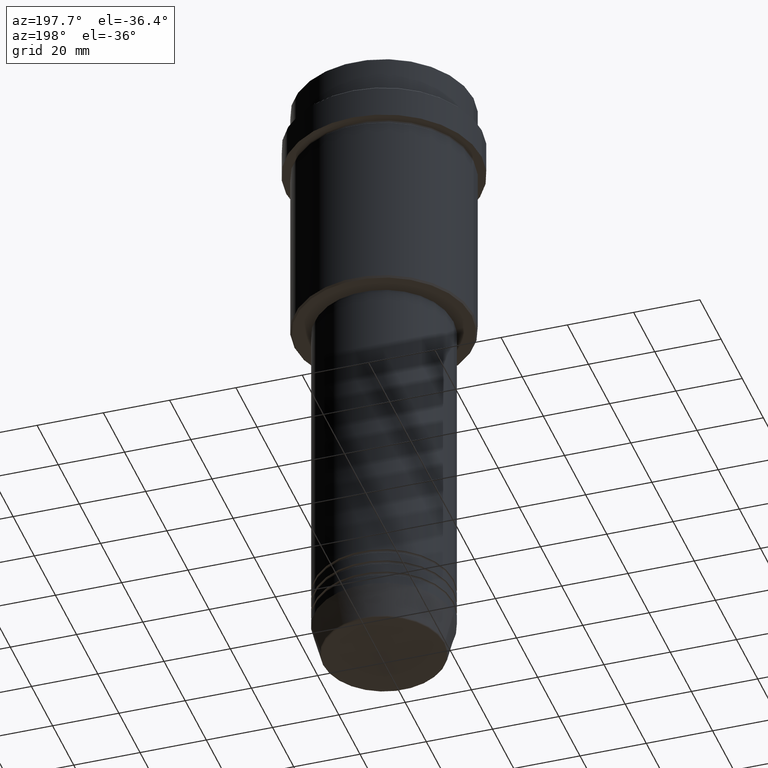
[diagram: clean part render]
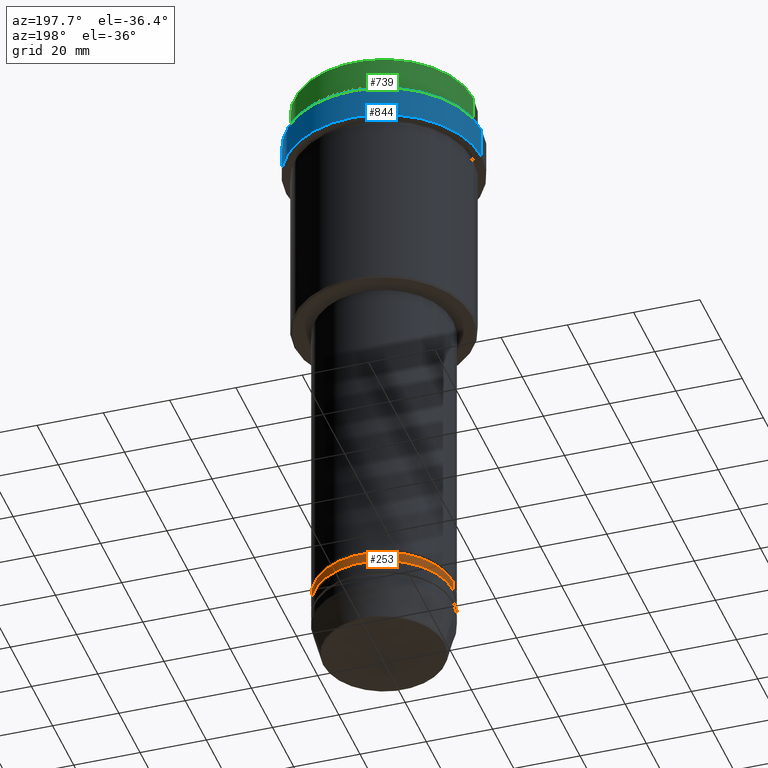
[diagram: same view with three faces highlighted in distinct colors, each labeled with its STEP entity id]
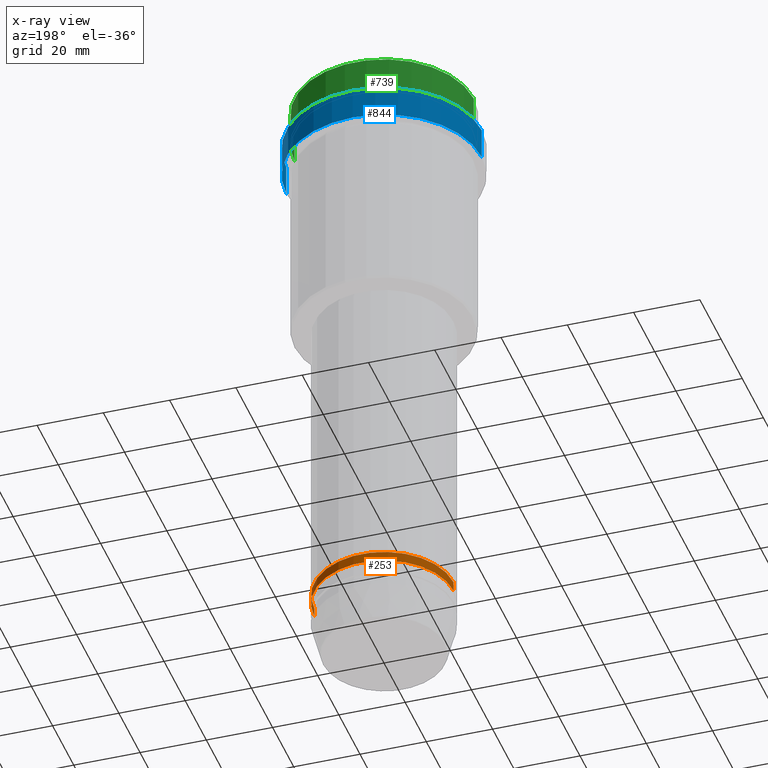
[diagram: x-ray of the same camera — body ghosted, the three highlighted faces saturated]
A machine part, auxiliary view with three faces highlighted in distinct colors.
The next image is the same camera in x-ray (body ghosted, the three faces saturated) — at least one of them is partly hidden behind the body in this view.
Their STEP definitions:

[orange] entity #253 — the highlighted cylindrical surface (partial cylindrical patch) has radius 21 mm, axis along (-0, -0, 1).
#2 = CARTESIAN_POINT ( 'NONE',  ( 0.000000000000000000, 0.000000000000000000, -171.9999999999999147 ) ) ;
#7 = DIRECTION ( 'NONE',  ( -0.000000000000000000, -0.000000000000000000, 1.000000000000000000 ) ) ;
#73 = AXIS2_PLACEMENT_3D ( 'NONE', #2, #1300, #1219 ) ;
#79 = CARTESIAN_POINT ( 'NONE',  ( -21.00000000000000000, 2.571758278209441661E-15, 0.000000000000000000 ) ) ;
#93 = CIRCLE ( 'NONE', #1097, 21.00000000000000000 ) ;
#124 = CARTESIAN_POINT ( 'NONE',  ( 0.000000000000000000, 0.000000000000000000, -174.9999999999999147 ) ) ;
#160 = EDGE_CURVE ( 'NONE', #770, #904, #93, .T. ) ;
#192 = CARTESIAN_POINT ( 'NONE',  ( -21.00000000000000000, 2.571758278209441661E-15, -171.9999999999999147 ) ) ;
#237 = CARTESIAN_POINT ( 'NONE',  ( 21.00000000000000000, 0.000000000000000000, 0.000000000000000000 ) ) ;
#253 = ADVANCED_FACE ( 'NONE', ( #847 ), #868, .T. ) ;
#381 = ORIENTED_EDGE ( 'NONE', *, *, #160, .T. ) ;
#450 = EDGE_CURVE ( 'NONE', #770, #486, #905, .T. ) ;
#486 = VERTEX_POINT ( 'NONE', #924 ) ;
#574 = ORIENTED_EDGE ( 'NONE', *, *, #1011, .T. ) ;
#635 = DIRECTION ( 'NONE',  ( -0.000000000000000000, -0.000000000000000000, 1.000000000000000000 ) ) ;
#756 = DIRECTION ( 'NONE',  ( 1.000000000000000000, 0.000000000000000000, 0.000000000000000000 ) ) ;
#770 = VERTEX_POINT ( 'NONE', #1208 ) ;
#847 = FACE_OUTER_BOUND ( 'NONE', #1083, .T. ) ;
#868 = CYLINDRICAL_SURFACE ( 'NONE', #1163, 21.00000000000000000 ) ;
#897 = DIRECTION ( 'NONE',  ( -0.000000000000000000, -0.000000000000000000, 1.000000000000000000 ) ) ;
#904 = VERTEX_POINT ( 'NONE', #1026 ) ;
#905 = LINE ( 'NONE', #237, #949 ) ;
#924 = CARTESIAN_POINT ( 'NONE',  ( 21.00000000000000000, 0.000000000000000000, -171.9999999999999147 ) ) ;
#949 = VECTOR ( 'NONE', #897, 1000.000000000000000 ) ;
#995 = ORIENTED_EDGE ( 'NONE', *, *, #1173, .F. ) ;
#1011 = EDGE_CURVE ( 'NONE', #904, #1088, #1380, .T. ) ;
#1026 = CARTESIAN_POINT ( 'NONE',  ( -21.00000000000000000, 2.571758278209441661E-15, -174.9999999999999147 ) ) ;
#1083 = EDGE_LOOP ( 'NONE', ( #381, #574, #995, #1404 ) ) ;
#1088 = VERTEX_POINT ( 'NONE', #192 ) ;
#1092 = DIRECTION ( 'NONE',  ( 1.000000000000000000, 0.000000000000000000, 0.000000000000000000 ) ) ;
#1097 = AXIS2_PLACEMENT_3D ( 'NONE', #124, #635, #1092 ) ;
#1163 = AXIS2_PLACEMENT_3D ( 'NONE', #1314, #7, #756 ) ;
#1173 = EDGE_CURVE ( 'NONE', #486, #1088, #1194, .T. ) ;
#1180 = DIRECTION ( 'NONE',  ( -0.000000000000000000, -0.000000000000000000, 1.000000000000000000 ) ) ;
#1194 = CIRCLE ( 'NONE', #73, 21.00000000000000000 ) ;
#1208 = CARTESIAN_POINT ( 'NONE',  ( 21.00000000000000000, 0.000000000000000000, -174.9999999999999147 ) ) ;
#1219 = DIRECTION ( 'NONE',  ( 1.000000000000000000, 0.000000000000000000, 0.000000000000000000 ) ) ;
#1300 = DIRECTION ( 'NONE',  ( -0.000000000000000000, -0.000000000000000000, 1.000000000000000000 ) ) ;
#1314 = CARTESIAN_POINT ( 'NONE',  ( 0.000000000000000000, 0.000000000000000000, 0.000000000000000000 ) ) ;
#1328 = VECTOR ( 'NONE', #1180, 1000.000000000000000 ) ;
#1380 = LINE ( 'NONE', #79, #1328 ) ;
#1404 = ORIENTED_EDGE ( 'NONE', *, *, #450, .F. ) ;

[blue] entity #844 — the highlighted cylindrical surface (partial cylindrical patch) has radius 29.5 mm, axis along (-0, -0, 1).
#44 = AXIS2_PLACEMENT_3D ( 'NONE', #1202, #322, #1091 ) ;
#174 = DIRECTION ( 'NONE',  ( 0.000000000000000000, 0.000000000000000000, -1.000000000000000000 ) ) ;
#315 = DIRECTION ( 'NONE',  ( -0.000000000000000000, -0.000000000000000000, 1.000000000000000000 ) ) ;
#322 = DIRECTION ( 'NONE',  ( -0.000000000000000000, -0.000000000000000000, 1.000000000000000000 ) ) ;
#327 = AXIS2_PLACEMENT_3D ( 'NONE', #484, #174, #927 ) ;
#341 = ORIENTED_EDGE ( 'NONE', *, *, #412, .T. ) ;
#354 = VERTEX_POINT ( 'NONE', #520 ) ;
#355 = CARTESIAN_POINT ( 'NONE',  ( -29.50000000000000000, 3.612708057484691604E-15, -12.49999999999997691 ) ) ;
#412 = EDGE_CURVE ( 'NONE', #1084, #1244, #882, .T. ) ;
#421 = VECTOR ( 'NONE', #529, 1000.000000000000000 ) ;
#426 = CARTESIAN_POINT ( 'NONE',  ( 0.000000000000000000, 0.000000000000000000, 0.000000000000000000 ) ) ;
#428 = CARTESIAN_POINT ( 'NONE',  ( -29.49999999999999645, 3.612708057484690815E-15, -22.00000000000000711 ) ) ;
#484 = CARTESIAN_POINT ( 'NONE',  ( 0.000000000000000000, 0.000000000000000000, -12.49999999999997691 ) ) ;
#520 = CARTESIAN_POINT ( 'NONE',  ( 29.50000000000000000, 0.000000000000000000, -12.49999999999997691 ) ) ;
#529 = DIRECTION ( 'NONE',  ( -0.000000000000000000, -0.000000000000000000, 1.000000000000000000 ) ) ;
#586 = CARTESIAN_POINT ( 'NONE',  ( 29.49999999999999645, 0.000000000000000000, -22.00000000000000711 ) ) ;
#593 = VERTEX_POINT ( 'NONE', #355 ) ;
#594 = AXIS2_PLACEMENT_3D ( 'NONE', #426, #315, #640 ) ;
#629 = CARTESIAN_POINT ( 'NONE',  ( -29.50000000000000000, 3.612708057484691604E-15, 0.000000000000000000 ) ) ;
#640 = DIRECTION ( 'NONE',  ( 1.000000000000000000, 0.000000000000000000, 0.000000000000000000 ) ) ;
#745 = FACE_OUTER_BOUND ( 'NONE', #1207, .T. ) ;
#780 = VECTOR ( 'NONE', #859, 1000.000000000000000 ) ;
#844 = ADVANCED_FACE ( 'NONE', ( #745 ), #1416, .T. ) ;
#859 = DIRECTION ( 'NONE',  ( -0.000000000000000000, -0.000000000000000000, 1.000000000000000000 ) ) ;
#882 = CIRCLE ( 'NONE', #44, 29.49999999999999645 ) ;
#927 = DIRECTION ( 'NONE',  ( 1.000000000000000000, 0.000000000000000000, 0.000000000000000000 ) ) ;
#959 = LINE ( 'NONE', #629, #421 ) ;
#980 = CIRCLE ( 'NONE', #327, 29.50000000000000000 ) ;
#1069 = ORIENTED_EDGE ( 'NONE', *, *, #1221, .F. ) ;
#1082 = LINE ( 'NONE', #1315, #780 ) ;
#1084 = VERTEX_POINT ( 'NONE', #586 ) ;
#1089 = ORIENTED_EDGE ( 'NONE', *, *, #1094, .T. ) ;
#1091 = DIRECTION ( 'NONE',  ( 1.000000000000000000, 0.000000000000000000, 0.000000000000000000 ) ) ;
#1094 = EDGE_CURVE ( 'NONE', #593, #354, #980, .T. ) ;
#1202 = CARTESIAN_POINT ( 'NONE',  ( 0.000000000000000000, 0.000000000000000000, -22.00000000000000711 ) ) ;
#1207 = EDGE_LOOP ( 'NONE', ( #341, #1318, #1089, #1069 ) ) ;
#1221 = EDGE_CURVE ( 'NONE', #1084, #354, #1082, .T. ) ;
#1244 = VERTEX_POINT ( 'NONE', #428 ) ;
#1248 = EDGE_CURVE ( 'NONE', #1244, #593, #959, .T. ) ;
#1315 = CARTESIAN_POINT ( 'NONE',  ( 29.50000000000000000, 0.000000000000000000, 0.000000000000000000 ) ) ;
#1318 = ORIENTED_EDGE ( 'NONE', *, *, #1248, .T. ) ;
#1416 = CYLINDRICAL_SURFACE ( 'NONE', #594, 29.50000000000000000 ) ;

[green] entity #739 — the highlighted cylindrical surface (partial cylindrical patch) has radius 27 mm, axis along (-0, -0, 1).
#27 = CARTESIAN_POINT ( 'NONE',  ( 27.00000000000000355, 0.000000000000000000, -11.00000000000000178 ) ) ;
#30 = LINE ( 'NONE', #913, #119 ) ;
#37 = DIRECTION ( 'NONE',  ( -0.000000000000000000, -0.000000000000000000, 1.000000000000000000 ) ) ;
#88 = CARTESIAN_POINT ( 'NONE',  ( 0.000000000000000000, 0.000000000000000000, -0.4999999999999796274 ) ) ;
#119 = VECTOR ( 'NONE', #37, 1000.000000000000000 ) ;
#143 = EDGE_CURVE ( 'NONE', #1359, #841, #781, .T. ) ;
#180 = AXIS2_PLACEMENT_3D ( 'NONE', #941, #1377, #811 ) ;
#219 = ORIENTED_EDGE ( 'NONE', *, *, #143, .T. ) ;
#242 = CARTESIAN_POINT ( 'NONE',  ( -27.00000000000000355, 3.306546357697854128E-15, -0.4999999999999796274 ) ) ;
#287 = DIRECTION ( 'NONE',  ( -0.000000000000000000, -0.000000000000000000, 1.000000000000000000 ) ) ;
#338 = DIRECTION ( 'NONE',  ( 0.000000000000000000, 0.000000000000000000, -1.000000000000000000 ) ) ;
#432 = EDGE_CURVE ( 'NONE', #878, #1181, #535, .T. ) ;
#527 = DIRECTION ( 'NONE',  ( 1.000000000000000000, 0.000000000000000000, 0.000000000000000000 ) ) ;
#534 = CARTESIAN_POINT ( 'NONE',  ( -27.00000000000000355, 3.306546357697854128E-15, -11.00000000000000178 ) ) ;
#535 = CIRCLE ( 'NONE', #1344, 27.00000000000000355 ) ;
#546 = DIRECTION ( 'NONE',  ( -0.000000000000000000, -0.000000000000000000, 1.000000000000000000 ) ) ;
#591 = CARTESIAN_POINT ( 'NONE',  ( -27.00000000000000355, 3.306546357697854128E-15, 0.000000000000000000 ) ) ;
#711 = AXIS2_PLACEMENT_3D ( 'NONE', #1294, #546, #527 ) ;
#739 = ADVANCED_FACE ( 'NONE', ( #864 ), #978, .T. ) ;
#781 = CIRCLE ( 'NONE', #180, 27.00000000000000355 ) ;
#809 = LINE ( 'NONE', #591, #1053 ) ;
#811 = DIRECTION ( 'NONE',  ( 1.000000000000000000, 0.000000000000000000, 0.000000000000000000 ) ) ;
#826 = ORIENTED_EDGE ( 'NONE', *, *, #1114, .T. ) ;
#841 = VERTEX_POINT ( 'NONE', #534 ) ;
#864 = FACE_OUTER_BOUND ( 'NONE', #1105, .T. ) ;
#878 = VERTEX_POINT ( 'NONE', #242 ) ;
#913 = CARTESIAN_POINT ( 'NONE',  ( 27.00000000000000355, 0.000000000000000000, 0.000000000000000000 ) ) ;
#939 = EDGE_CURVE ( 'NONE', #1359, #1181, #30, .T. ) ;
#941 = CARTESIAN_POINT ( 'NONE',  ( 0.000000000000000000, 0.000000000000000000, -11.00000000000000178 ) ) ;
#978 = CYLINDRICAL_SURFACE ( 'NONE', #711, 27.00000000000000355 ) ;
#1007 = DIRECTION ( 'NONE',  ( 1.000000000000000000, 0.000000000000000000, 0.000000000000000000 ) ) ;
#1053 = VECTOR ( 'NONE', #287, 1000.000000000000000 ) ;
#1105 = EDGE_LOOP ( 'NONE', ( #219, #826, #1293, #1268 ) ) ;
#1114 = EDGE_CURVE ( 'NONE', #841, #878, #809, .T. ) ;
#1181 = VERTEX_POINT ( 'NONE', #1188 ) ;
#1188 = CARTESIAN_POINT ( 'NONE',  ( 27.00000000000000355, 0.000000000000000000, -0.4999999999999796274 ) ) ;
#1268 = ORIENTED_EDGE ( 'NONE', *, *, #939, .F. ) ;
#1293 = ORIENTED_EDGE ( 'NONE', *, *, #432, .T. ) ;
#1294 = CARTESIAN_POINT ( 'NONE',  ( 0.000000000000000000, 0.000000000000000000, 0.000000000000000000 ) ) ;
#1344 = AXIS2_PLACEMENT_3D ( 'NONE', #88, #338, #1007 ) ;
#1359 = VERTEX_POINT ( 'NONE', #27 ) ;
#1377 = DIRECTION ( 'NONE',  ( -0.000000000000000000, -0.000000000000000000, 1.000000000000000000 ) ) ;